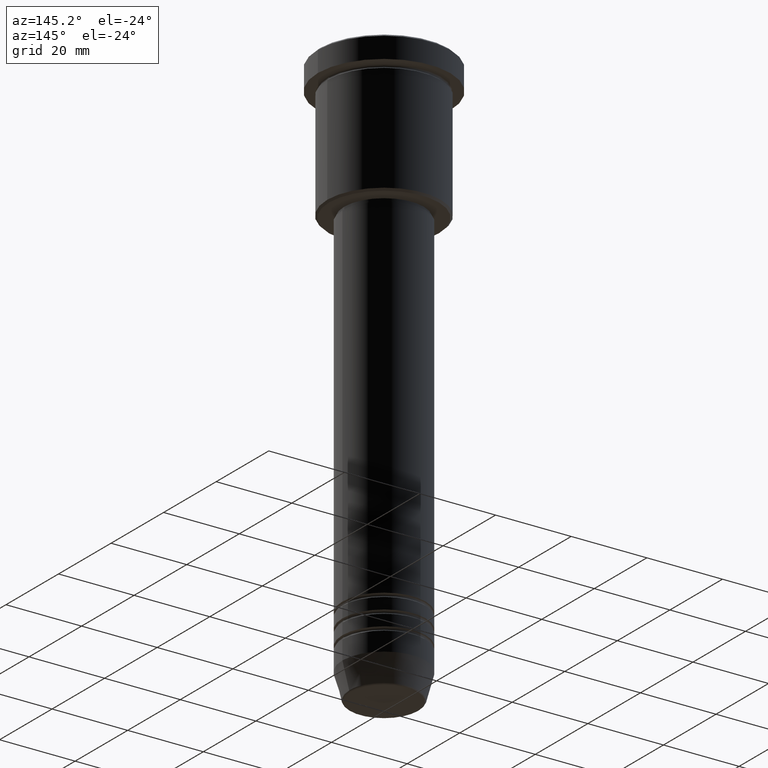
[diagram: clean part render]
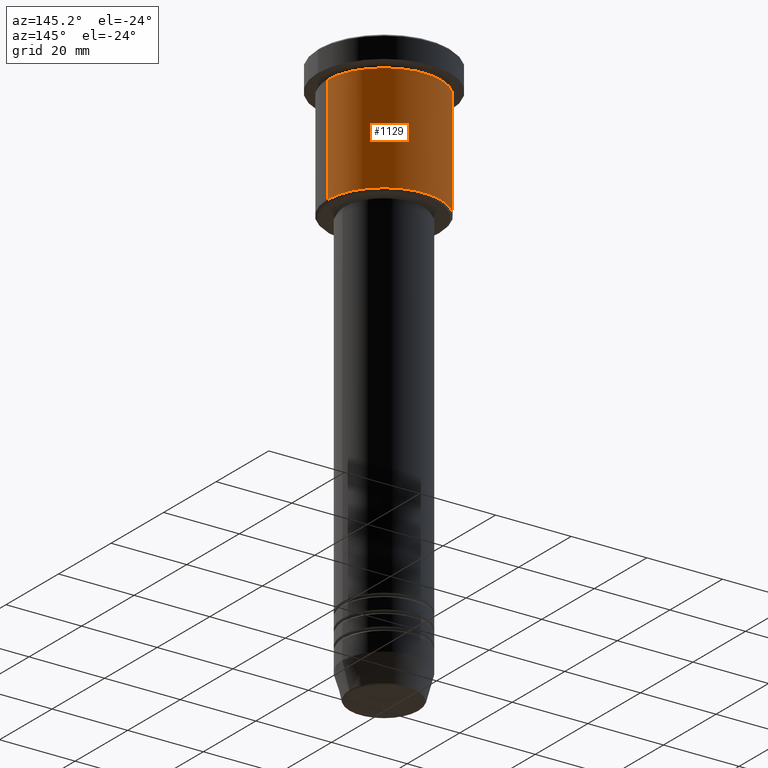
[diagram: same view with one face highlighted and labeled with its STEP entity id]
A machine part, auxiliary view. The second image highlights one B-rep face of the part: STEP entity #1129.
In plain terms, the highlighted cylindrical surface (partial cylindrical patch) has radius 15 mm, axis along (-0, -0, 1).
Its self-contained STEP definition (entity closure, byte-faithful):
#8 = EDGE_CURVE ( 'NONE', #388, #158, #558, .T. ) ;
#108 = CARTESIAN_POINT ( 'NONE',  ( -15.00000000000000000, 1.836970198721029589E-15, -6.999999999999995559 ) ) ;
#116 = DIRECTION ( 'NONE',  ( -0.000000000000000000, -0.000000000000000000, 1.000000000000000000 ) ) ;
#147 = EDGE_CURVE ( 'NONE', #572, #1083, #407, .T. ) ;
#158 = VERTEX_POINT ( 'NONE', #436 ) ;
#192 = EDGE_CURVE ( 'NONE', #158, #1083, #1085, .T. ) ;
#241 = DIRECTION ( 'NONE',  ( 1.000000000000000000, 0.000000000000000000, 0.000000000000000000 ) ) ;
#319 = ORIENTED_EDGE ( 'NONE', *, *, #147, .F. ) ;
#322 = EDGE_CURVE ( 'NONE', #388, #572, #1126, .T. ) ;
#331 = ORIENTED_EDGE ( 'NONE', *, *, #322, .F. ) ;
#344 = CARTESIAN_POINT ( 'NONE',  ( 0.000000000000000000, 0.000000000000000000, -35.49999999999997868 ) ) ;
#367 = EDGE_LOOP ( 'NONE', ( #776, #1168, #319, #331 ) ) ;
#388 = VERTEX_POINT ( 'NONE', #1175 ) ;
#407 = CIRCLE ( 'NONE', #977, 15.00000000000000000 ) ;
#421 = DIRECTION ( 'NONE',  ( -0.000000000000000000, -0.000000000000000000, 1.000000000000000000 ) ) ;
#436 = CARTESIAN_POINT ( 'NONE',  ( -15.00000000000000000, 1.836970198721029589E-15, -35.49999999999997868 ) ) ;
#512 = DIRECTION ( 'NONE',  ( -0.000000000000000000, -0.000000000000000000, 1.000000000000000000 ) ) ;
#558 = CIRCLE ( 'NONE', #599, 15.00000000000000000 ) ;
#572 = VERTEX_POINT ( 'NONE', #725 ) ;
#578 = VECTOR ( 'NONE', #747, 1000.000000000000000 ) ;
#599 = AXIS2_PLACEMENT_3D ( 'NONE', #344, #421, #992 ) ;
#618 = VECTOR ( 'NONE', #757, 1000.000000000000000 ) ;
#682 = AXIS2_PLACEMENT_3D ( 'NONE', #1109, #116, #1023 ) ;
#725 = CARTESIAN_POINT ( 'NONE',  ( 15.00000000000000000, 0.000000000000000000, -6.999999999999995559 ) ) ;
#742 = CARTESIAN_POINT ( 'NONE',  ( 15.00000000000000000, 0.000000000000000000, 0.000000000000000000 ) ) ;
#747 = DIRECTION ( 'NONE',  ( -0.000000000000000000, -0.000000000000000000, 1.000000000000000000 ) ) ;
#757 = DIRECTION ( 'NONE',  ( -0.000000000000000000, -0.000000000000000000, 1.000000000000000000 ) ) ;
#776 = ORIENTED_EDGE ( 'NONE', *, *, #8, .T. ) ;
#912 = CARTESIAN_POINT ( 'NONE',  ( -15.00000000000000000, 1.836970198721029589E-15, 0.000000000000000000 ) ) ;
#928 = CYLINDRICAL_SURFACE ( 'NONE', #682, 15.00000000000000000 ) ;
#948 = FACE_OUTER_BOUND ( 'NONE', #367, .T. ) ;
#977 = AXIS2_PLACEMENT_3D ( 'NONE', #1173, #512, #241 ) ;
#992 = DIRECTION ( 'NONE',  ( -1.000000000000000000, 0.000000000000000000, 0.000000000000000000 ) ) ;
#1023 = DIRECTION ( 'NONE',  ( 1.000000000000000000, 0.000000000000000000, 0.000000000000000000 ) ) ;
#1083 = VERTEX_POINT ( 'NONE', #108 ) ;
#1085 = LINE ( 'NONE', #912, #618 ) ;
#1109 = CARTESIAN_POINT ( 'NONE',  ( 0.000000000000000000, 0.000000000000000000, 0.000000000000000000 ) ) ;
#1126 = LINE ( 'NONE', #742, #578 ) ;
#1129 = ADVANCED_FACE ( 'NONE', ( #948 ), #928, .T. ) ;
#1168 = ORIENTED_EDGE ( 'NONE', *, *, #192, .T. ) ;
#1173 = CARTESIAN_POINT ( 'NONE',  ( 0.000000000000000000, 0.000000000000000000, -6.999999999999995559 ) ) ;
#1175 = CARTESIAN_POINT ( 'NONE',  ( 15.00000000000000000, 0.000000000000000000, -35.49999999999997868 ) ) ;